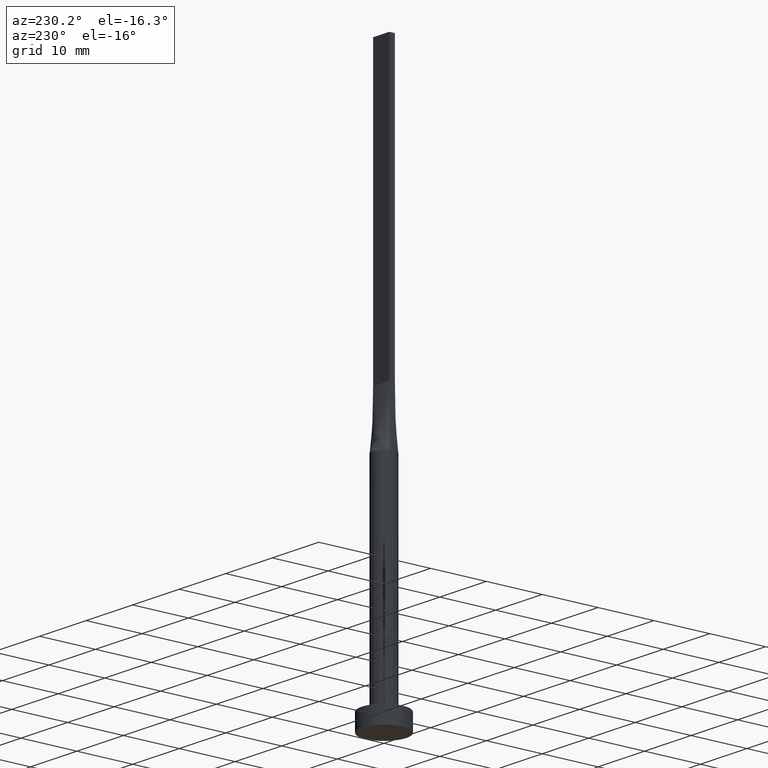
[diagram: clean part render]
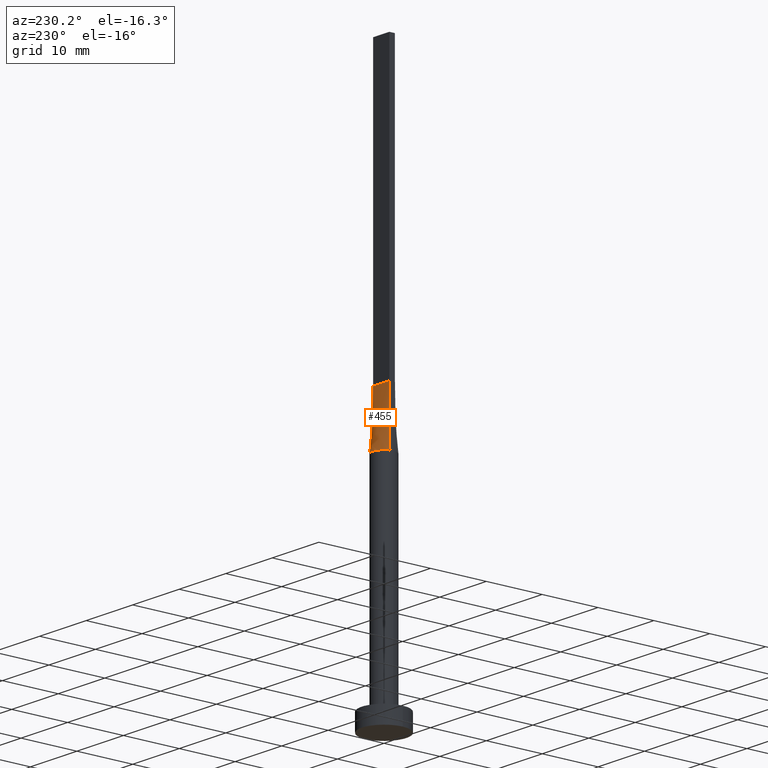
[diagram: same view with one face highlighted and labeled with its STEP entity id]
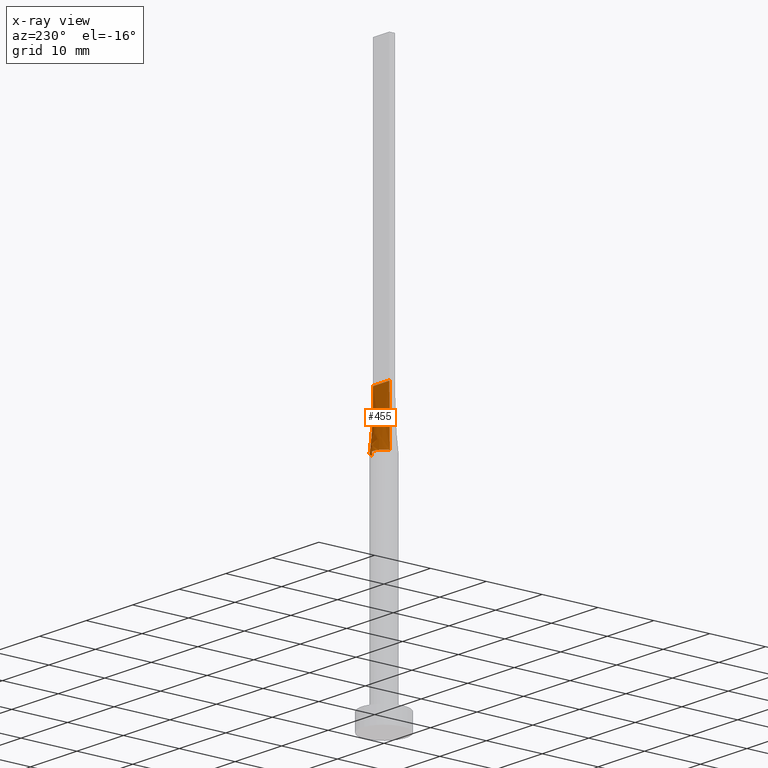
[diagram: x-ray of the same camera — body ghosted, the highlighted face saturated]
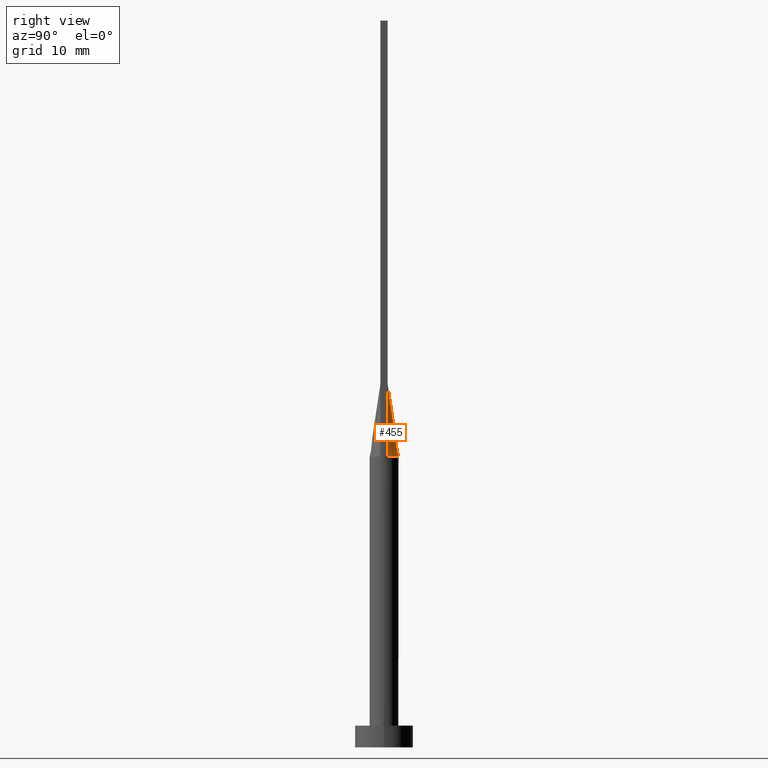
[diagram: same view with one face highlighted and labeled with its STEP entity id]
A machine part, auxiliary view. The second image highlights one B-rep face of the part: STEP entity #455.
The next image is the same camera in x-ray: the body ghosted, the highlighted face saturated — about 0% of this face is hidden behind the body in this view.
A second angle (right view) of the same face is appended — the face is thin or edge-on in the first view.
In plain terms, the highlighted face is a freeform B-spline surface patch.
Its self-contained STEP definition (entity closure, byte-faithful):
#2 = CARTESIAN_POINT ( 'NONE',  ( 0.5833333333333319271, 0.5000000000000002220, 50.00000000000000000 ) ) ;
#6 = CARTESIAN_POINT ( 'NONE',  ( 1.155438169178558461, 1.647245198242353714, 40.00000000000000000 ) ) ;
#8 = CARTESIAN_POINT ( 'NONE',  ( 0.9545234919502409987, 1.774214358793529955, 40.00000000000000000 ) ) ;
#11 = CARTESIAN_POINT ( 'NONE',  ( -1.879022738048941710, 0.7035303061092221810, 40.00000000000000000 ) ) ;
#17 = CARTESIAN_POINT ( 'NONE',  ( 1.749999999999999778, 0.5000000000000002220, 50.00000000000000000 ) ) ;
#18 = CARTESIAN_POINT ( 'NONE',  ( -1.155438169178558017, 1.647245198242353936, 40.00000000000001421 ) ) ;
#36 = CARTESIAN_POINT ( 'NONE',  ( 1.836523947640823051, 0.5247211278973783477, 45.00000000000000000 ) ) ;
#45 = CARTESIAN_POINT ( 'NONE',  ( -0.2514338042514528415, 1.999999999999999556, 40.00000000000000000 ) ) ;
#47 = CARTESIAN_POINT ( 'NONE',  ( 1.923047895281646325, 0.5494422557947561403, 40.00000000000000000 ) ) ;
#53 = CARTESIAN_POINT ( 'NONE',  ( 0.2514338042514535632, 1.999999999999999556, 39.99999999999999289 ) ) ;
#59 = CARTESIAN_POINT ( 'NONE',  ( -1.812374357931688884, 0.8669367617086288780, 40.00000000000001421 ) ) ;
#62 = DIRECTION ( 'NONE',  ( -1.000000000000000000, -0.000000000000000000, -0.000000000000000000 ) ) ;
#69 = CARTESIAN_POINT ( 'NONE',  ( 0.5022746254375803909, 1.951069421695587947, 40.00000000000000000 ) ) ;
#88 = EDGE_LOOP ( 'NONE', ( #107, #254, #263, #375 ) ) ;
#89 = CARTESIAN_POINT ( 'NONE',  ( -0.9545234919502401105, 1.774214358793530177, 40.00000000000000000 ) ) ;
#94 = CARTESIAN_POINT ( 'NONE',  ( -1.604166666666666519, 0.5000000000000002220, 50.00000000000000000 ) ) ;
#96 = CARTESIAN_POINT ( 'NONE',  ( 1.020833333333331927, 0.5000000000000002220, 50.00000000000000000 ) ) ;
#98 = CARTESIAN_POINT ( 'NONE',  ( -0.5833333333333342585, 0.5000000000000002220, 50.00000000000000000 ) ) ;
#107 = ORIENTED_EDGE ( 'NONE', *, *, #505, .T. ) ;
#121 = B_SPLINE_CURVE_WITH_KNOTS ( 'NONE', 3,
 ( #197, #550, #334, #156, #288, #332, #461, #69, #244, #412, #503, #196, #18, #235, #419, #59, #11, #371 ),
 .UNSPECIFIED., .F., .F.,
 ( 4, 2, 2, 2, 2, 2, 2, 2, 4 ),
 ( 0.000000000000000000, 0.1249999999999999722, 0.2500000000000000000, 0.3750000000000000000, 0.5000000000000001110, 0.6250000000000001110, 0.7500000000000000000, 0.8750000000000000000, 1.000000000000000000 ),
 .UNSPECIFIED. ) ;
#139 = CARTESIAN_POINT ( 'NONE',  ( 1.604166666666665408, 0.5000000000000002220, 50.00000000000000000 ) ) ;
#140 = CARTESIAN_POINT ( 'NONE',  ( -1.020833333333333703, 0.5000000000000002220, 50.00000000000000000 ) ) ;
#147 = CARTESIAN_POINT ( 'NONE',  ( 0.5022746254375803909, 1.951069421695587947, 40.00000000000000000 ) ) ;
#152 = CARTESIAN_POINT ( 'NONE',  ( -1.749999999999999778, 0.5000000000000002220, 50.00000000000000000 ) ) ;
#156 = CARTESIAN_POINT ( 'NONE',  ( 1.616149014776643522, 1.193458220519943103, 40.00000000000000000 ) ) ;
#175 = EDGE_CURVE ( 'NONE', #531, #575, #482, .T. ) ;
#181 = CARTESIAN_POINT ( 'NONE',  ( 1.616149014776643522, 1.193458220519943103, 40.00000000000000000 ) ) ;
#189 = CARTESIAN_POINT ( 'NONE',  ( 0.1458333333333322601, 0.5000000000000002220, 50.00000000000000000 ) ) ;
#194 = EDGE_CURVE ( 'NONE', #490, #463, #462, .T. ) ;
#196 = CARTESIAN_POINT ( 'NONE',  ( -0.9545234919502401105, 1.774214358793530177, 40.00000000000000000 ) ) ;
#197 = CARTESIAN_POINT ( 'NONE',  ( 1.923154993136894975, 0.5494733089275741778, 40.00000000000000000 ) ) ;
#199 = CARTESIAN_POINT ( 'NONE',  ( -1.749999999999999778, 0.5000000000000002220, 50.00000000000000000 ) ) ;
#221 = CARTESIAN_POINT ( 'NONE',  ( -0.2916666666666677954, 0.5000000000000002220, 50.00000000000000000 ) ) ;
#224 = CARTESIAN_POINT ( 'NONE',  ( 1.458333333333332149, 0.5000000000000002220, 50.00000000000000000 ) ) ;
#229 = CARTESIAN_POINT ( 'NONE',  ( -1.812374357931688884, 0.8669367617086288780, 40.00000000000001421 ) ) ;
#235 = CARTESIAN_POINT ( 'NONE',  ( -1.486037034853319616, 1.356520562679218056, 40.00000000000000000 ) ) ;
#244 = CARTESIAN_POINT ( 'NONE',  ( 0.2514338042514535632, 1.999999999999999556, 39.99999999999999289 ) ) ;
#254 = ORIENTED_EDGE ( 'NONE', *, *, #175, .T. ) ;
#262 = VECTOR ( 'NONE', #62, 1000.000000000000000 ) ;
#263 = ORIENTED_EDGE ( 'NONE', *, *, #485, .F. ) ;
#265 = CARTESIAN_POINT ( 'NONE',  ( -1.616149014776643966, 1.193458220519943103, 40.00000000000002132 ) ) ;
#269 = CARTESIAN_POINT ( 'NONE',  ( 1.166666666666665186, 0.5000000000000002220, 50.00000000000000000 ) ) ;
#272 = DIRECTION ( 'NONE',  ( 0.01730198768854152372, -0.004943425053868931440, 0.9998380887777591486 ) ) ;
#274 = CARTESIAN_POINT ( 'NONE',  ( -0.7291666666666674068, 0.5000000000000002220, 50.00000000000000000 ) ) ;
#280 = CARTESIAN_POINT ( 'NONE',  ( 1.923154993136894975, 0.5494733089275741778, 40.00000000000000000 ) ) ;
#288 = CARTESIAN_POINT ( 'NONE',  ( 1.486037034853319616, 1.356520562679217834, 39.99999999999997868 ) ) ;
#300 = CARTESIAN_POINT ( 'NONE',  ( -1.749999999999999778, 0.5000000000000002220, 50.00000000000000000 ) ) ;
#313 = CARTESIAN_POINT ( 'NONE',  ( -1.166666666666666963, 0.5000000000000002220, 50.00000000000000000 ) ) ;
#322 = CARTESIAN_POINT ( 'NONE',  ( -1.923047895281646325, 0.5494422557947555852, 40.00000000000000000 ) ) ;
#332 = CARTESIAN_POINT ( 'NONE',  ( 1.155438169178558461, 1.647245198242353714, 40.00000000000000000 ) ) ;
#334 = CARTESIAN_POINT ( 'NONE',  ( 1.812374357931689328, 0.8669367617086293221, 40.00000000000002132 ) ) ;
#352 = VECTOR ( 'NONE', #578, 1000.000000000000227 ) ;
#358 = CARTESIAN_POINT ( 'NONE',  ( -1.155438169178558017, 1.647245198242353936, 40.00000000000001421 ) ) ;
#359 = CARTESIAN_POINT ( 'NONE',  ( -0.1458333333333343695, 0.5000000000000002220, 50.00000000000000000 ) ) ;
#362 = CARTESIAN_POINT ( 'NONE',  ( 1.812374357931689328, 0.8669367617086293221, 40.00000000000002132 ) ) ;
#371 = CARTESIAN_POINT ( 'NONE',  ( -1.923179810488875541, 0.5494804890868837388, 40.00000000000000000 ) ) ;
#372 = B_SPLINE_SURFACE_WITH_KNOTS ( 'NONE', 3, 1, ( 
 ( #47, #530 ),
 ( #399, #139 ),
 ( #362, #224 ),
 ( #181, #269 ),
 ( #403, #96 ),
 ( #6, #408 ),
 ( #8, #2 ),
 ( #147, #491 ),
 ( #53, #189 ),
 ( #45, #359 ),
 ( #481, #221 ),
 ( #89, #98 ),
 ( #358, #274 ),
 ( #448, #140 ),
 ( #265, #313 ),
 ( #229, #542 ),
 ( #484, #94 ),
 ( #322, #152 ) ),
 .UNSPECIFIED., .F., .F., .F.,
 ( 4, 2, 2, 2, 2, 2, 2, 2, 4 ),
 ( 2, 2 ),
 ( 0.000000000000000000, 0.1249999999999999722, 0.2500000000000000000, 0.3750000000000000000, 0.5000000000000001110, 0.6250000000000001110, 0.7500000000000000000, 0.8750000000000000000, 1.000000000000000000 ),
 ( 0.000000000000000000, 1.000000000000000000 ),
 .UNSPECIFIED. ) ;
#375 = ORIENTED_EDGE ( 'NONE', *, *, #194, .F. ) ;
#399 = CARTESIAN_POINT ( 'NONE',  ( 1.879022738048942154, 0.7035303061092218480, 39.99999999999999289 ) ) ;
#403 = CARTESIAN_POINT ( 'NONE',  ( 1.486037034853319616, 1.356520562679217834, 39.99999999999997868 ) ) ;
#408 = CARTESIAN_POINT ( 'NONE',  ( 0.7291666666666652974, 0.5000000000000002220, 50.00000000000000000 ) ) ;
#412 = CARTESIAN_POINT ( 'NONE',  ( -0.2514338042514528415, 1.999999999999999556, 40.00000000000000000 ) ) ;
#419 = CARTESIAN_POINT ( 'NONE',  ( -1.616149014776643966, 1.193458220519943103, 40.00000000000002132 ) ) ;
#448 = CARTESIAN_POINT ( 'NONE',  ( -1.486037034853319616, 1.356520562679218056, 40.00000000000000000 ) ) ;
#455 = ADVANCED_FACE ( 'NONE', ( #526 ), #372, .T. ) ;
#461 = CARTESIAN_POINT ( 'NONE',  ( 0.9545234919502409987, 1.774214358793529955, 40.00000000000000000 ) ) ;
#462 = LINE ( 'NONE', #36, #352 ) ;
#463 = VERTEX_POINT ( 'NONE', #17 ) ;
#481 = CARTESIAN_POINT ( 'NONE',  ( -0.5022746254375797248, 1.951069421695588169, 40.00000000000000000 ) ) ;
#482 = LINE ( 'NONE', #532, #524 ) ;
#484 = CARTESIAN_POINT ( 'NONE',  ( -1.879022738048941710, 0.7035303061092221810, 40.00000000000000000 ) ) ;
#485 = EDGE_CURVE ( 'NONE', #463, #575, #510, .T. ) ;
#490 = VERTEX_POINT ( 'NONE', #280 ) ;
#491 = CARTESIAN_POINT ( 'NONE',  ( 0.2916666666666655194, 0.5000000000000002220, 50.00000000000000000 ) ) ;
#502 = CARTESIAN_POINT ( 'NONE',  ( -1.923179810488875541, 0.5494804890868837388, 40.00000000000000000 ) ) ;
#503 = CARTESIAN_POINT ( 'NONE',  ( -0.5022746254375797248, 1.951069421695588169, 40.00000000000000000 ) ) ;
#505 = EDGE_CURVE ( 'NONE', #490, #531, #121, .T. ) ;
#510 = LINE ( 'NONE', #199, #262 ) ;
#524 = VECTOR ( 'NONE', #272, 1000.000000000000227 ) ;
#526 = FACE_OUTER_BOUND ( 'NONE', #88, .T. ) ;
#530 = CARTESIAN_POINT ( 'NONE',  ( 1.749999999999998890, 0.5000000000000002220, 50.00000000000000000 ) ) ;
#531 = VERTEX_POINT ( 'NONE', #502 ) ;
#532 = CARTESIAN_POINT ( 'NONE',  ( -1.836523947640823051, 0.5247211278973779036, 45.00000000000000000 ) ) ;
#542 = CARTESIAN_POINT ( 'NONE',  ( -1.458333333333333481, 0.5000000000000002220, 50.00000000000000000 ) ) ;
#550 = CARTESIAN_POINT ( 'NONE',  ( 1.879022738048942154, 0.7035303061092218480, 39.99999999999999289 ) ) ;
#575 = VERTEX_POINT ( 'NONE', #300 ) ;
#578 = DIRECTION ( 'NONE',  ( -0.01730198768854152372, -0.004943425053869007768, 0.9998380887777591486 ) ) ;